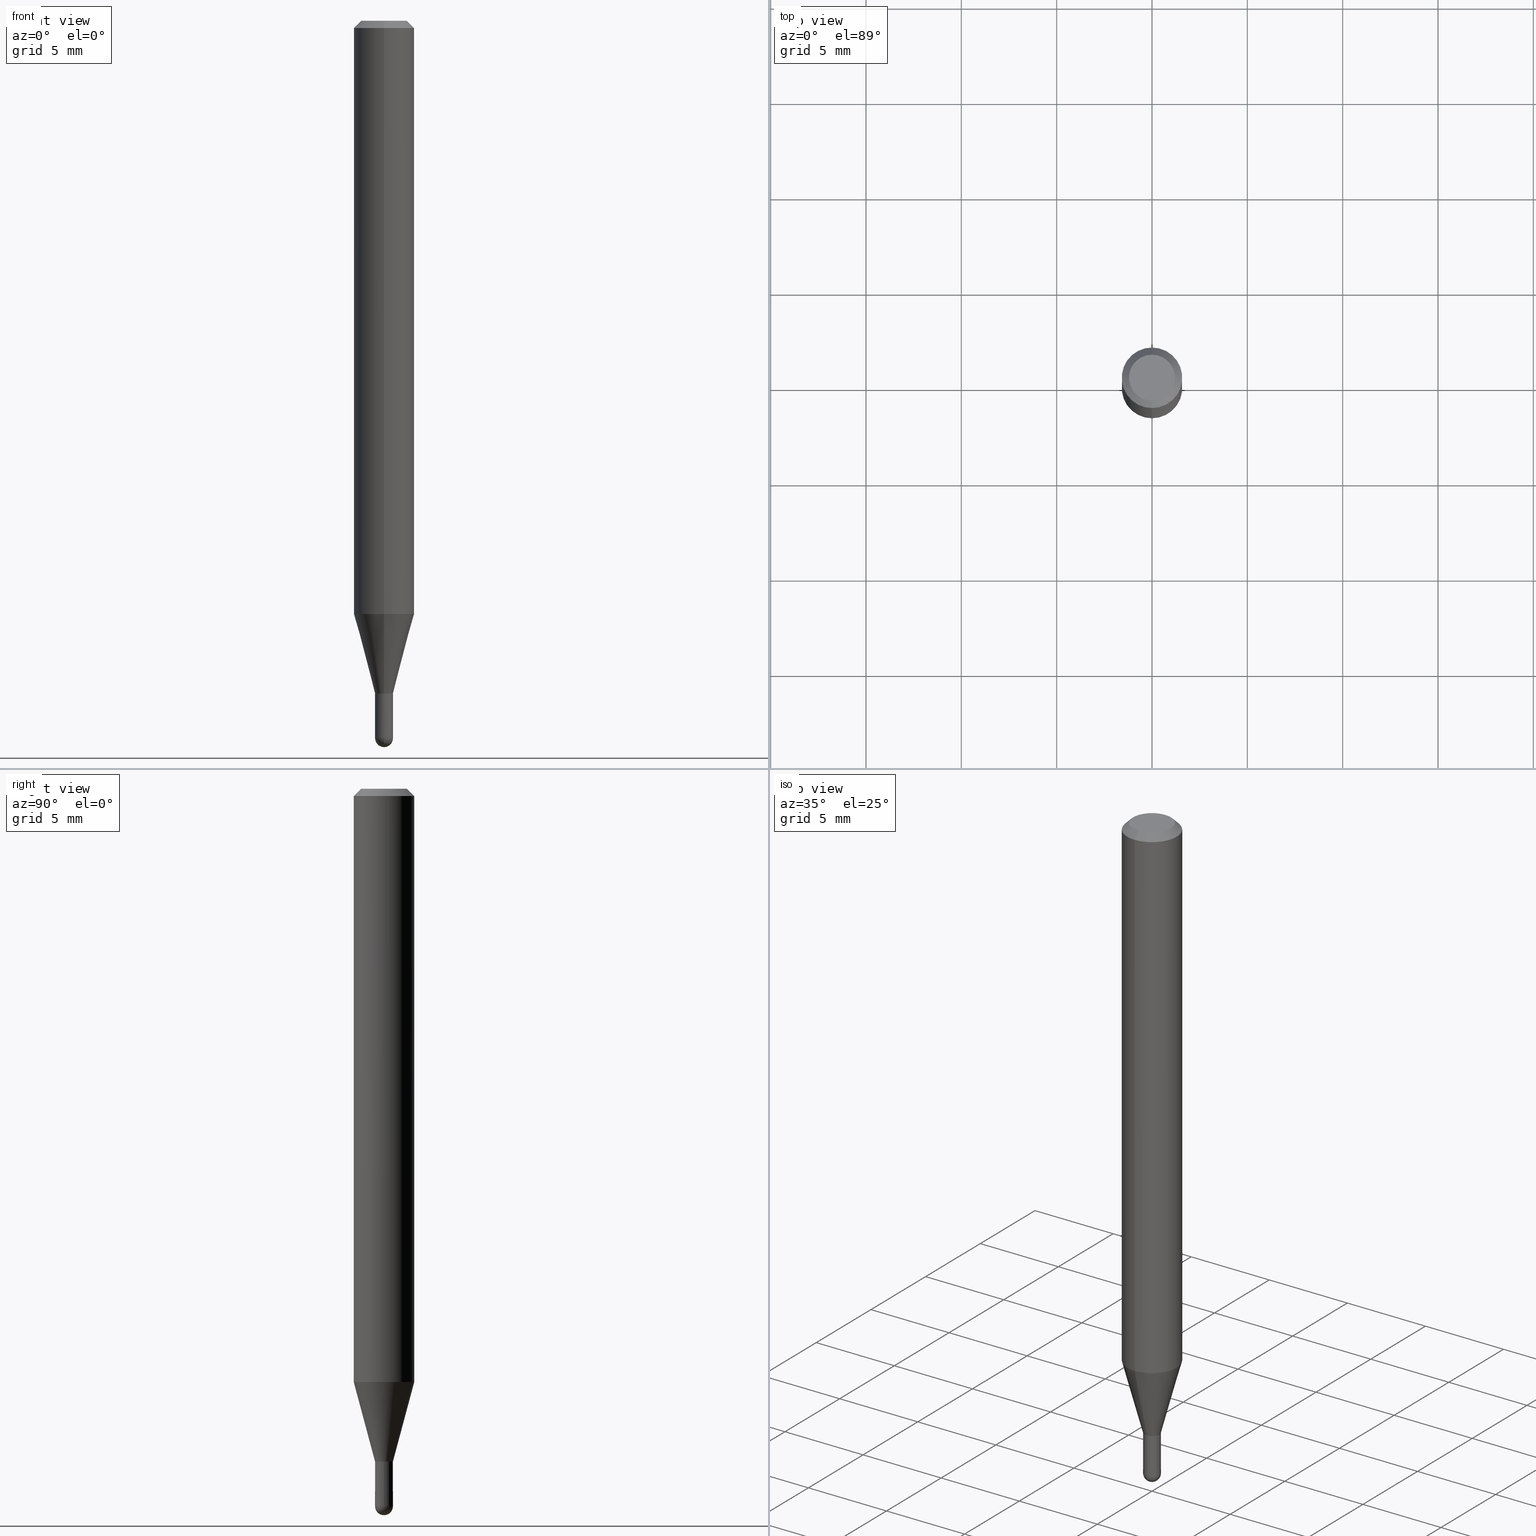
[diagram: canonical four-view strip — front | top / right | iso, engineering-drawing reading convention]
A machine part, canonical four-view strip (front | top / right | iso — engineering-drawing reading convention). The complete STEP part file that produces these views, byte-faithful:
ISO-10303-21;
HEADER;
FILE_DESCRIPTION (( 'STEP AP203' ),
    '1' );
FILE_NAME ('04415.STEP',
    '2024-03-08T19:18:58',
    ( '' ),
    ( '' ),
    'SwSTEP 2.0',
    'SolidWorks 2023',
    '' );
FILE_SCHEMA (( 'CONFIG_CONTROL_DESIGN' ));
ENDSEC;

DATA;
#1 = DIRECTION ( 'NONE',  ( 1.000000000000000000, -6.982962677686254089E-15, 0.000000000000000000 ) ) ;
#2 = CARTESIAN_POINT ( 'NONE',  ( 3.621379978728298144E-29, -5.174895200074542438E-15, -1.481500000000000039 ) ) ;
#3 = PERSON_AND_ORGANIZATION ( #355, #282 ) ;
#4 = CONICAL_SURFACE ( 'NONE', #297, 0.06250000000000000000, 0.7853981633974483900 ) ;
#5 = VECTOR ( 'NONE', #407, 39.37007874015748143 ) ;
#6 = DIRECTION ( 'NONE',  ( -6.982962677686265133E-15, -1.000000000000000000, 0.000000000000000000 ) ) ;
#7 = VERTEX_POINT ( 'NONE', #382 ) ;
#8 = CARTESIAN_POINT ( 'NONE',  ( 3.396756171791154536E-29, -4.849667579653129396E-15, -1.389000000000000234 ) ) ;
#9 = DIRECTION ( 'NONE',  ( -2.445468806185136597E-29, 3.491481338843145583E-15, 1.000000000000000000 ) ) ;
#10 = ADVANCED_FACE ( 'NONE', ( #491 ), #4, .T. ) ;
#11 = DIRECTION ( 'NONE',  ( 1.000000000000000000, -6.982962677686266711E-15, 4.876176775795935232E-29 ) ) ;
#12 = ORIENTED_EDGE ( 'NONE', *, *, #116, .F. ) ;
#13 = VECTOR ( 'NONE', #206, 39.37007874015748143 ) ;
#14 = CARTESIAN_POINT ( 'NONE',  ( 3.622962036363280209E-29, -5.172629603496120178E-15, -1.481500000000000039 ) ) ;
#15 = DESIGN_CONTEXT ( 'detailed design', #210, 'design' ) ;
#16 = ADVANCED_FACE ( 'NONE', ( #413 ), #471, .T. ) ;
#17 = DIRECTION ( 'NONE',  ( -6.982962677686265133E-15, -1.000000000000000000, 0.000000000000000000 ) ) ;
#18 = ORIENTED_EDGE ( 'NONE', *, *, #286, .F. ) ;
#19 = VERTEX_POINT ( 'NONE', #350 ) ;
#20 = CIRCLE ( 'NONE', #487, 0.01850000000000004766 ) ;
#21 = VERTEX_POINT ( 'NONE', #469 ) ;
#22 = EDGE_CURVE ( 'NONE', #299, #479, #287, .T. ) ;
#23 = DIRECTION ( 'NONE',  ( -4.851104656540964275E-15, -0.7071067811865500152, -0.7071067811865450192 ) ) ;
#24 = ORIENTED_EDGE ( 'NONE', *, *, #390, .F. ) ;
#25 = DIRECTION ( 'NONE',  ( -2.445452761393576848E-29, 3.491504315897871274E-15, 1.000000000000000000 ) ) ;
#26 = CIRCLE ( 'NONE', #493, 0.01849999999999999908 ) ;
#27 = VERTEX_POINT ( 'NONE', #228 ) ;
#28 = CARTESIAN_POINT ( 'NONE',  ( 3.621379978728298144E-29, -5.174895200074542438E-15, -1.481500000000000039 ) ) ;
#29 = APPROVAL_STATUS ( 'not_yet_approved' ) ;
#30 =( NAMED_UNIT ( * ) SI_UNIT ( $, .STERADIAN. ) SOLID_ANGLE_UNIT ( ) );
#31 = DIRECTION ( 'NONE',  ( -2.445452761393577128E-29, 3.491504315897871274E-15, 1.000000000000000000 ) ) ;
#32 = CARTESIAN_POINT ( 'NONE',  ( 3.396733885575678864E-29, -4.849699494782143429E-15, -1.389000000000000234 ) ) ;
#33 = APPLICATION_PROTOCOL_DEFINITION ( 'international standard', 'config_control_design', 1994, #143 ) ;
#34 = CARTESIAN_POINT ( 'NONE',  ( 1.278976924368519941E-16, 0.01799999999999515182, -1.388999999999999790 ) ) ;
#35 = DIRECTION ( 'NONE',  ( -6.982962677686265922E-15, -1.000000000000000000, 4.370956789862821150E-15 ) ) ;
#36 = CIRCLE ( 'NONE', #102, 0.01849999999999965214 ) ;
#37 = PERSON_AND_ORGANIZATION_ROLE ( 'classification_officer' ) ;
#38 = CYLINDRICAL_SURFACE ( 'NONE', #349, 0.01849999999999999908 ) ;
#39 = ADVANCED_FACE ( 'NONE', ( #462 ), #219, .T. ) ;
#40 = DIRECTION ( 'NONE',  ( -2.445452761393577128E-29, 3.491504315897871274E-15, 1.000000000000000000 ) ) ;
#41 = MECHANICAL_CONTEXT ( 'NONE', #143, 'mechanical' ) ;
#42 = CALENDAR_DATE ( 2024, 8, 3 ) ;
#43 = ORIENTED_EDGE ( 'NONE', *, *, #444, .F. ) ;
#44 = AXIS2_PLACEMENT_3D ( 'NONE', #32, #507, #6 ) ;
#45 = EDGE_CURVE ( 'NONE', #273, #443, #20, .T. ) ;
#46 = APPROVAL_PERSON_ORGANIZATION ( #110, #94, #283 ) ;
#47 = CARTESIAN_POINT ( 'NONE',  ( -1.291848095371934828E-16, -0.01849999999999965214, 6.459282984410940126E-17 ) ) ;
#48 = CARTESIAN_POINT ( 'NONE',  ( 3.840629472727447874E-16, 0.04749999999999999362, -2.313455976474456035E-16 ) ) ;
#49 = CARTESIAN_POINT ( 'NONE',  ( 1.314504061156500084E-16, 0.01849999999999480185, -1.389000000000000234 ) ) ;
#50 = CARTESIAN_POINT ( 'NONE',  ( 3.621379978728298144E-29, -5.174895200074542438E-15, -1.481500000000000039 ) ) ;
#51 = DIRECTION ( 'NONE',  ( 1.000000000000000000, -6.982962677686253300E-15, 0.000000000000000000 ) ) ;
#52 = DIRECTION ( 'NONE',  ( -2.445452761393576848E-29, 3.491504315897871274E-15, 1.000000000000000000 ) ) ;
#53 = CIRCLE ( 'NONE', #401, 0.01850000000000000255 ) ;
#54 = EDGE_CURVE ( 'NONE', #27, #299, #338, .T. ) ;
#55 = VERTEX_POINT ( 'NONE', #187 ) ;
#56 = DIRECTION ( 'NONE',  ( -2.445468806185136877E-29, 3.491481338843145188E-15, 1.000000000000000000 ) ) ;
#57 = CARTESIAN_POINT ( 'NONE',  ( -4.364351673553916201E-16, -0.06250000000000000000, 2.182190197436169546E-16 ) ) ;
#58 = EDGE_LOOP ( 'NONE', ( #278, #454, #302, #324, #301 ) ) ;
#59 = ADVANCED_FACE ( 'NONE', ( #346 ), #147, .T. ) ;
#60 = CIRCLE ( 'NONE', #268, 0.01849999999999965214 ) ;
#61 = LOCAL_TIME ( 14, 18, 58.00000000000000000, #230 ) ;
#62 = CONICAL_SURFACE ( 'NONE', #113, 0.01849999999999965214, 0.2617993877991581231 ) ;
#63 = EDGE_LOOP ( 'NONE', ( #474, #183, #456, #436 ) ) ;
#64 = CC_DESIGN_PERSON_AND_ORGANIZATION_ASSIGNMENT ( #76, #149, ( #176 ) ) ;
#65 = CARTESIAN_POINT ( 'NONE',  ( 0.000000000000000000, 0.000000000000000000, 0.000000000000000000 ) ) ;
#66 = CARTESIAN_POINT ( 'NONE',  ( -1.291848095371599808E-16, -0.01850000000000456141, -1.388500000000000290 ) ) ;
#67 = DIRECTION ( 'NONE',  ( -2.445468806185136597E-29, 3.491481338843145583E-15, 1.000000000000000000 ) ) ;
#68 = ORIENTED_EDGE ( 'NONE', *, *, #262, .F. ) ;
#69 = DIRECTION ( 'NONE',  ( 1.839019923739654352E-15, 0.2588190451025325634, 0.9659258262890650926 ) ) ;
#70 = VECTOR ( 'NONE', #52, 39.37007874015748143 ) ;
#71 = PERSON_AND_ORGANIZATION_ROLE ( 'design_owner' ) ;
#72 = DIRECTION ( 'NONE',  ( -6.982962677686265922E-15, -1.000000000000000000, 0.000000000000000000 ) ) ;
#73 = DIRECTION ( 'NONE',  ( -6.982962677686265133E-15, -1.000000000000000000, 0.000000000000000000 ) ) ;
#74 = DIRECTION ( 'NONE',  ( -2.445452761393577128E-29, 3.491504315897871274E-15, 1.000000000000000000 ) ) ;
#75 = CARTESIAN_POINT ( 'NONE',  ( 3.668179142090381947E-31, -5.237256473846829838E-17, -0.01500000000000006710 ) ) ;
#76 = PERSON_AND_ORGANIZATION ( #355, #282 ) ;
#77 = EDGE_CURVE ( 'NONE', #55, #101, #440, .T. ) ;
#78 = LINE ( 'NONE', #327, #88 ) ;
#79 = AXIS2_PLACEMENT_3D ( 'NONE', #405, #31, #331 ) ;
#80 = ORIENTED_EDGE ( 'NONE', *, *, #22, .F. ) ;
#81 = PERSON_AND_ORGANIZATION_ROLE ( 'design_supplier' ) ;
#82 = ORIENTED_EDGE ( 'NONE', *, *, #286, .T. ) ;
#83 = LINE ( 'NONE', #47, #70 ) ;
#84 = SPHERICAL_SURFACE ( 'NONE', #481, 0.01850000000000004766 ) ;
#85 = EDGE_CURVE ( 'NONE', #19, #294, #226, .T. ) ;
#86 = ORIENTED_EDGE ( 'NONE', *, *, #444, .T. ) ;
#87 = CC_DESIGN_PERSON_AND_ORGANIZATION_ASSIGNMENT ( #347, #81, ( #340 ) ) ;
#88 = VECTOR ( 'NONE', #510, 39.37007874015748143 ) ;
#89 = CARTESIAN_POINT ( 'NONE',  ( -4.364351673553617913E-16, -0.06250000000000428824, -1.224789764466973629 ) ) ;
#90 = ORIENTED_EDGE ( 'NONE', *, *, #99, .T. ) ;
#91 = FACE_OUTER_BOUND ( 'NONE', #217, .T. ) ;
#92 = DIRECTION ( 'NONE',  ( -2.445452761393577128E-29, 3.491504315897871274E-15, 1.000000000000000000 ) ) ;
#93 = DIRECTION ( 'NONE',  ( -2.445452761393577128E-29, 3.491504315897871274E-15, 1.000000000000000000 ) ) ;
#94 = APPROVAL ( #267, 'UNSPECIFIED' ) ;
#95 = VERTEX_POINT ( 'NONE', #245 ) ;
#96 = CIRCLE ( 'NONE', #384, 0.01850000000000000255 ) ;
#97 = ORIENTED_EDGE ( 'NONE', *, *, #375, .F. ) ;
#98 = ORIENTED_EDGE ( 'NONE', *, *, #137, .T. ) ;
#99 = EDGE_CURVE ( 'NONE', #299, #19, #175, .T. ) ;
#100 = DIRECTION ( 'NONE',  ( 6.982962677686265922E-15, 1.000000000000000000, -3.491504315897871274E-15 ) ) ;
#101 = VERTEX_POINT ( 'NONE', #114 ) ;
#102 = AXIS2_PLACEMENT_3D ( 'NONE', #357, #247, #196 ) ;
#103 = CONICAL_SURFACE ( 'NONE', #289, 0.01800000000000000211, 0.7853981633974739252 ) ;
#104 = DIRECTION ( 'NONE',  ( 6.982962677686265922E-15, 1.000000000000000000, -3.483106191921935554E-15 ) ) ;
#105 = CARTESIAN_POINT ( 'NONE',  ( 3.668179142090381947E-31, -5.237256473846829838E-17, -0.01500000000000006710 ) ) ;
#106 = FACE_OUTER_BOUND ( 'NONE', #483, .T. ) ;
#107 = EDGE_LOOP ( 'NONE', ( #417, #445 ) ) ;
#108 = ADVANCED_FACE ( 'NONE', ( #106 ), #422, .F. ) ;
#109 = ORIENTED_EDGE ( 'NONE', *, *, #354, .F. ) ;
#110 = PERSON_AND_ORGANIZATION ( #355, #282 ) ;
#111 = CARTESIAN_POINT ( 'NONE',  ( 1.291848095372298936E-16, 0.01849999999999515227, -1.389000000000000234 ) ) ;
#112 = AXIS2_PLACEMENT_3D ( 'NONE', #111, #186, #271 ) ;
#113 = AXIS2_PLACEMENT_3D ( 'NONE', #182, #146, #73 ) ;
#114 = CARTESIAN_POINT ( 'NONE',  ( 4.440892098500927901E-16, 0.06249999999999995837, -0.01500000000000028394 ) ) ;
#115 = PERSON_AND_ORGANIZATION ( #355, #282 ) ;
#116 = EDGE_CURVE ( 'NONE', #479, #476, #433, .T. ) ;
#117 = CARTESIAN_POINT ( 'NONE',  ( 3.396733885575678304E-29, -4.849699494782142640E-15, -1.388999999999999790 ) ) ;
#118 = DIRECTION ( 'NONE',  ( -2.445452761393577128E-29, 3.491504315897871274E-15, 1.000000000000000000 ) ) ;
#119 = DIRECTION ( 'NONE',  ( -2.445452761393577128E-29, 3.491504315897871274E-15, 1.000000000000000000 ) ) ;
#120 = COORDINATED_UNIVERSAL_TIME_OFFSET ( 5, 0, .BEHIND. ) ;
#121 = PRODUCT_RELATED_PRODUCT_CATEGORY ( 'detail', '', ( #232 ) ) ;
#122 = APPROVAL_PERSON_ORGANIZATION ( #3, #429, #509 ) ;
#123 = DIRECTION ( 'NONE',  ( -2.445452761393577128E-29, 3.491504315897871274E-15, 1.000000000000000000 ) ) ;
#124 = EDGE_LOOP ( 'NONE', ( #80, #170, #370, #12 ) ) ;
#125 = ADVANCED_FACE ( 'NONE', ( #470 ), #352, .F. ) ;
#126 = ORIENTED_EDGE ( 'NONE', *, *, #399, .T. ) ;
#127 = DIRECTION ( 'NONE',  ( -6.982962677686265922E-15, -1.000000000000000000, 3.491504315897871274E-15 ) ) ;
#128 = AXIS2_PLACEMENT_3D ( 'NONE', #506, #118, #151 ) ;
#129 = EDGE_LOOP ( 'NONE', ( #18, #362, #68, #253 ) ) ;
#130 = AXIS2_PLACEMENT_3D ( 'NONE', #117, #162, #485 ) ;
#131 = ORIENTED_EDGE ( 'NONE', *, *, #85, .T. ) ;
#132 = ORIENTED_EDGE ( 'NONE', *, *, #492, .T. ) ;
#133 = FACE_OUTER_BOUND ( 'NONE', #284, .T. ) ;
#134 = LINE ( 'NONE', #446, #5 ) ;
#135 = APPROVAL ( #29, 'UNSPECIFIED' ) ;
#136 = AXIS2_PLACEMENT_3D ( 'NONE', #425, #150, #330 ) ;
#137 = EDGE_CURVE ( 'NONE', #495, #223, #242, .T. ) ;
#138 = CARTESIAN_POINT ( 'NONE',  ( -0.01849999999999999908, 1.314504061156185279E-16, -9.100029916971574589E-31 ) ) ;
#139 = LINE ( 'NONE', #57, #243 ) ;
#140 = ORIENTED_EDGE ( 'NONE', *, *, #148, .T. ) ;
#141 = CONICAL_SURFACE ( 'NONE', #79, 0.01800000000000000211, 0.7853981633974739252 ) ;
#142 = VERTEX_POINT ( 'NONE', #274 ) ;
#143 = APPLICATION_CONTEXT ( 'configuration controlled 3d designs of mechanical parts and assemblies' ) ;
#144 = EDGE_CURVE ( 'NONE', #142, #21, #26, .T. ) ;
#145 = EDGE_LOOP ( 'NONE', ( #181, #307, #379, #406 ) ) ;
#146 = DIRECTION ( 'NONE',  ( -2.445452761393577128E-29, 3.491504315897871274E-15, 1.000000000000000000 ) ) ;
#147 = CONICAL_SURFACE ( 'NONE', #450, 0.06250000000000000000, 0.7853981633974483900 ) ;
#148 = EDGE_CURVE ( 'NONE', #443, #431, #96, .T. ) ;
#149 = PERSON_AND_ORGANIZATION_ROLE ( 'creator' ) ;
#150 = DIRECTION ( 'NONE',  ( -2.445468806185136597E-29, 3.491481338843145583E-15, 1.000000000000000000 ) ) ;
#151 = DIRECTION ( 'NONE',  ( -6.982962677686265133E-15, -1.000000000000000000, 3.491504315897871274E-15 ) ) ;
#152 = DIRECTION ( 'NONE',  ( 7.105427357601000281E-15, 1.000000000000000000, 0.000000000000000000 ) ) ;
#153 = CARTESIAN_POINT ( 'NONE',  ( 3.396733885575678304E-29, -4.849699494782142640E-15, -1.388999999999999790 ) ) ;
#154 = COORDINATED_UNIVERSAL_TIME_OFFSET ( 5, 0, .BEHIND. ) ;
#155 = CARTESIAN_POINT ( 'NONE',  ( 3.622962036363280209E-29, -5.172629603496120178E-15, -1.481500000000000039 ) ) ;
#156 = PLANE ( 'NONE',  #348 ) ;
#157 = CALENDAR_DATE ( 2024, 8, 3 ) ;
#158 = EDGE_CURVE ( 'NONE', #479, #101, #358, .T. ) ;
#159 = CARTESIAN_POINT ( 'NONE',  ( 0.01849999999999999908, -1.291848095371959233E-16, 9.020927035222480096E-31 ) ) ;
#160 = ORIENTED_EDGE ( 'NONE', *, *, #148, .F. ) ;
#161 = CYLINDRICAL_SURFACE ( 'NONE', #334, 0.06250000000000000000 ) ;
#162 = DIRECTION ( 'NONE',  ( -2.445452761393577128E-29, 3.491504315897871274E-15, 1.000000000000000000 ) ) ;
#163 = FACE_OUTER_BOUND ( 'NONE', #63, .T. ) ;
#164 = DIRECTION ( 'NONE',  ( -2.445468806185136597E-29, 3.491481338843145583E-15, 1.000000000000000000 ) ) ;
#165 = CC_DESIGN_PERSON_AND_ORGANIZATION_ASSIGNMENT ( #356, #71, ( #232 ) ) ;
#166 = VECTOR ( 'NONE', #23, 39.37007874015748143 ) ;
#167 = DIRECTION ( 'NONE',  ( -2.445468806185136597E-29, 3.491481338843145583E-15, 1.000000000000000000 ) ) ;
#168 = MANIFOLD_SOLID_BREP ( 'Body-Move/Copy2[1]', #325 ) ;
#169 = CYLINDRICAL_SURFACE ( 'NONE', #393, 0.01849999999999965214 ) ;
#170 = ORIENTED_EDGE ( 'NONE', *, *, #329, .T. ) ;
#171 =( LENGTH_UNIT ( ) NAMED_UNIT ( * ) SI_UNIT ( $, .METRE. ) );
#172 = MANIFOLD_SOLID_BREP ( 'Body-Move/Copy2[2]', #466 ) ;
#173 = ADVANCED_FACE ( 'NONE', ( #312 ), #500, .T. ) ;
#174 = EDGE_LOOP ( 'NONE', ( #207, #496, #488, #43 ) ) ;
#175 = LINE ( 'NONE', #309, #252 ) ;
#176 = PRODUCT_DEFINITION ( 'UNKNOWN', '', #340, #15 ) ;
#177 = AXIS2_PLACEMENT_3D ( 'NONE', #75, #447, #300 ) ;
#178 = LOCAL_TIME ( 14, 18, 58.00000000000000000, #154 ) ;
#179 = CARTESIAN_POINT ( 'NONE',  ( 1.601750592435163401E-45, -2.286905392231893458E-31, -6.549914264229672534E-17 ) ) ;
#180 = LINE ( 'NONE', #441, #465 ) ;
#181 = ORIENTED_EDGE ( 'NONE', *, *, #345, .F. ) ;
#182 = CARTESIAN_POINT ( 'NONE',  ( 3.396733885575678864E-29, -4.849699494782143429E-15, -1.389000000000000234 ) ) ;
#183 = ORIENTED_EDGE ( 'NONE', *, *, #54, .F. ) ;
#184 = PRODUCT_DEFINITION_SHAPE ( 'NONE', 'NONE',  #176 ) ;
#185 = EDGE_CURVE ( 'NONE', #504, #294, #134, .T. ) ;
#186 = DIRECTION ( 'NONE',  ( 2.438088387897960049E-29, -3.491481338843145188E-15, -1.000000000000000000 ) ) ;
#187 = CARTESIAN_POINT ( 'NONE',  ( -4.364351673553912750E-16, -0.06250000000000005551, -0.01499999999999984852 ) ) ;
#188 = APPLICATION_PROTOCOL_DEFINITION ( 'international standard', 'config_control_design', 1994, #210 ) ;
#189 = DIRECTION ( 'NONE',  ( 5.024295867788190974E-15, 0.7071067811865681119, 0.7071067811865270336 ) ) ;
#190 = DIRECTION ( 'NONE',  ( -2.445452761393577128E-29, 3.491504315897871274E-15, 1.000000000000000000 ) ) ;
#191 = CARTESIAN_POINT ( 'NONE',  ( 3.622962036363280209E-29, -5.172629603496120178E-15, -1.481500000000000039 ) ) ;
#192 = CIRCLE ( 'NONE', #288, 0.06250000000000000000 ) ;
#193 = CC_DESIGN_PERSON_AND_ORGANIZATION_ASSIGNMENT ( #361, #387, ( #340 ) ) ;
#194 = LOCAL_TIME ( 14, 18, 58.00000000000000000, #392 ) ;
#195 = DIRECTION ( 'NONE',  ( -1.000000000000000000, 6.982962677686265922E-15, -4.883557194083112340E-29 ) ) ;
#196 = DIRECTION ( 'NONE',  ( -6.982962677686265133E-15, -1.000000000000000000, 0.000000000000000000 ) ) ;
#197 = DATE_AND_TIME ( #419, #408 ) ;
#198 = FACE_OUTER_BOUND ( 'NONE', #124, .T. ) ;
#199 = CARTESIAN_POINT ( 'NONE',  ( 3.622962036363280209E-29, -5.172629603496120178E-15, -1.481500000000000039 ) ) ;
#200 = AXIS2_PLACEMENT_3D ( 'NONE', #28, #353, #152 ) ;
#201 = AXIS2_PLACEMENT_3D ( 'NONE', #499, #315, #423 ) ;
#202 = ORIENTED_EDGE ( 'NONE', *, *, #144, .T. ) ;
#203 = CARTESIAN_POINT ( 'NONE',  ( 3.665830122825232919E-29, -5.240620403132352355E-15, -1.500000000000000222 ) ) ;
#204 = CARTESIAN_POINT ( 'NONE',  ( 1.314504061156549141E-16, 0.01849999999999485042, -1.481500000000000039 ) ) ;
#205 = EDGE_CURVE ( 'NONE', #7, #504, #411, .T. ) ;
#206 = DIRECTION ( 'NONE',  ( -2.445468806185136877E-29, 3.491481338843145188E-15, 1.000000000000000000 ) ) ;
#207 = ORIENTED_EDGE ( 'NONE', *, *, #279, .T. ) ;
#208 = DIRECTION ( 'NONE',  ( -2.445452761393577128E-29, 3.491504315897871274E-15, 1.000000000000000000 ) ) ;
#209 = DIRECTION ( 'NONE',  ( 1.000000000000000000, -6.982962677686265922E-15, 4.883557194083112901E-29 ) ) ;
#210 = APPLICATION_CONTEXT ( 'configuration controlled 3d designs of mechanical parts and assemblies' ) ;
#211 = CC_DESIGN_DATE_AND_TIME_ASSIGNMENT ( #388, #473, ( #213 ) ) ;
#212 = LINE ( 'NONE', #34, #261 ) ;
#213 = SECURITY_CLASSIFICATION ( '', '', #359 ) ;
#214 = CARTESIAN_POINT ( 'NONE',  ( 0.000000000000000000, 0.000000000000000000, 0.000000000000000000 ) ) ;
#215 = ORIENTED_EDGE ( 'NONE', *, *, #512, .F. ) ;
#216 = DIRECTION ( 'NONE',  ( -2.445452761393576848E-29, 3.491504315897871274E-15, 1.000000000000000000 ) ) ;
#217 = EDGE_LOOP ( 'NONE', ( #448, #438, #109, #409 ) ) ;
#218 = AXIS2_PLACEMENT_3D ( 'NONE', #50, #209, #420 ) ;
#219 = CONICAL_SURFACE ( 'NONE', #363, 0.01849999999999965214, 0.2617993877991581231 ) ;
#220 = CC_DESIGN_APPROVAL ( #135, ( #213 ) ) ;
#221 = ORIENTED_EDGE ( 'NONE', *, *, #404, .F. ) ;
#222 = EDGE_CURVE ( 'NONE', #459, #95, #235, .T. ) ;
#223 = VERTEX_POINT ( 'NONE', #295 ) ;
#224 = CC_DESIGN_PERSON_AND_ORGANIZATION_ASSIGNMENT ( #310, #37, ( #213 ) ) ;
#225 = EDGE_LOOP ( 'NONE', ( #458, #82, #215, #160 ) ) ;
#226 = CIRCLE ( 'NONE', #464, 0.01849999999999965214 ) ;
#227 = APPROVAL_PERSON_ORGANIZATION ( #115, #135, #322 ) ;
#228 = CARTESIAN_POINT ( 'NONE',  ( -1.291848095371595124E-16, -0.01850000000000450243, -1.389000000000000234 ) ) ;
#229 = ORIENTED_EDGE ( 'NONE', *, *, #375, .T. ) ;
#230 = COORDINATED_UNIVERSAL_TIME_OFFSET ( 5, 0, .BEHIND. ) ;
#231 = DATE_TIME_ROLE ( 'creation_date' ) ;
#232 = PRODUCT ( '04415', '04415', '', ( #41 ) ) ;
#233 = FACE_OUTER_BOUND ( 'NONE', #107, .T. ) ;
#234 = APPROVAL_STATUS ( 'not_yet_approved' ) ;
#235 = CIRCLE ( 'NONE', #280, 0.01850000000000000255 ) ;
#236 = CARTESIAN_POINT ( 'NONE',  ( 3.668179142090381947E-31, -5.237256473846829838E-17, -0.01500000000000006710 ) ) ;
#237 = DATE_AND_TIME ( #42, #61 ) ;
#238 = EDGE_CURVE ( 'NONE', #27, #294, #83, .T. ) ;
#239 = CALENDAR_DATE ( 2024, 8, 3 ) ;
#240 =( CONVERSION_BASED_UNIT ( 'INCH', #437 ) LENGTH_UNIT ( ) NAMED_UNIT ( #497 ) );
#241 = CARTESIAN_POINT ( 'NONE',  ( 1.601750592435163401E-45, -2.286905392231893458E-31, -6.549914264229672534E-17 ) ) ;
#242 = CIRCLE ( 'NONE', #418, 0.04749999999999999362 ) ;
#243 = VECTOR ( 'NONE', #216, 39.37007874015748143 ) ;
#244 = CARTESIAN_POINT ( 'NONE',  ( 0.000000000000000000, 0.000000000000000000, 0.000000000000000000 ) ) ;
#245 = CARTESIAN_POINT ( 'NONE',  ( -0.01850000000000000255, -4.879698185459006925E-15, -1.481500000000000039 ) ) ;
#246 = DIRECTION ( 'NONE',  ( 4.937700262164548042E-15, 0.7071067811865451302, -0.7071067811865499042 ) ) ;
#247 = DIRECTION ( 'NONE',  ( -2.445452761393577128E-29, 3.491504315897871274E-15, 1.000000000000000000 ) ) ;
#248 = ORIENTED_EDGE ( 'NONE', *, *, #492, .F. ) ;
#249 = CARTESIAN_POINT ( 'NONE',  ( 0.000000000000000000, 0.000000000000000000, 0.000000000000000000 ) ) ;
#250 = CARTESIAN_POINT ( 'NONE',  ( 3.316907271900976096E-16, 0.04749999999999999362, -1.985960263262972346E-16 ) ) ;
#251 = CARTESIAN_POINT ( 'NONE',  ( 3.396733885575678304E-29, -4.849699494782142640E-15, -1.388999999999999790 ) ) ;
#252 = VECTOR ( 'NONE', #25, 39.37007874015748143 ) ;
#253 = ORIENTED_EDGE ( 'NONE', *, *, #222, .F. ) ;
#254 = ORIENTED_EDGE ( 'NONE', *, *, #77, .T. ) ;
#255 = LINE ( 'NONE', #138, #305 ) ;
#256 = ADVANCED_FACE ( 'NONE', ( #367 ), #480, .T. ) ;
#257 = CARTESIAN_POINT ( 'NONE',  ( -1.291848095371598576E-16, -0.01850000000000519979, -1.481500000000000039 ) ) ;
#258 = ORIENTED_EDGE ( 'NONE', *, *, #383, .T. ) ;
#259 = DIRECTION ( 'NONE',  ( -6.982962677686265133E-15, -1.000000000000000000, 3.491504315897871274E-15 ) ) ;
#260 = ORIENTED_EDGE ( 'NONE', *, *, #137, .F. ) ;
#261 = VECTOR ( 'NONE', #189, 39.37007874015748143 ) ;
#262 = EDGE_CURVE ( 'NONE', #95, #443, #53, .T. ) ;
#263 = ORIENTED_EDGE ( 'NONE', *, *, #399, .F. ) ;
#264 = DIRECTION ( 'NONE',  ( -2.445452761393577128E-29, 3.491504315897871274E-15, 1.000000000000000000 ) ) ;
#265 = ORIENTED_EDGE ( 'NONE', *, *, #404, .T. ) ;
#266 = CARTESIAN_POINT ( 'NONE',  ( 3.668179142090381947E-31, -5.237256473846829838E-17, -0.01500000000000006710 ) ) ;
#267 = APPROVAL_STATUS ( 'not_yet_approved' ) ;
#268 = AXIS2_PLACEMENT_3D ( 'NONE', #472, #394, #275 ) ;
#269 = CARTESIAN_POINT ( 'NONE',  ( 3.396733885575678864E-29, -4.849699494782143429E-15, -1.389000000000000234 ) ) ;
#270 = COORDINATED_UNIVERSAL_TIME_OFFSET ( 5, 0, .BEHIND. ) ;
#271 = DIRECTION ( 'NONE',  ( -1.000000000000000000, 6.982962677686265922E-15, -4.876176775795935793E-29 ) ) ;
#272 = DATE_AND_TIME ( #395, #194 ) ;
#273 = VERTEX_POINT ( 'NONE', #203 ) ;
#274 = CARTESIAN_POINT ( 'NONE',  ( -0.01849999999999999908, -4.879698185459006925E-15, -1.389000000000000234 ) ) ;
#275 = DIRECTION ( 'NONE',  ( -6.982962677686265133E-15, -1.000000000000000000, 0.000000000000000000 ) ) ;
#276 = SHAPE_DEFINITION_REPRESENTATION ( #184, #468 ) ;
#277 = DIRECTION ( 'NONE',  ( -6.982962677686265922E-15, -1.000000000000000000, 3.483106191921935554E-15 ) ) ;
#278 = ORIENTED_EDGE ( 'NONE', *, *, #222, .T. ) ;
#279 = EDGE_CURVE ( 'NONE', #476, #479, #192, .T. ) ;
#280 = AXIS2_PLACEMENT_3D ( 'NONE', #14, #9, #400 ) ;
#281 = DIRECTION ( 'NONE',  ( -6.982962677686265133E-15, -1.000000000000000000, 0.000000000000000000 ) ) ;
#282 = ORGANIZATION ( 'UNSPECIFIED', 'UNSPECIFIED', '' ) ;
#283 = APPROVAL_ROLE ( '' ) ;
#284 = EDGE_LOOP ( 'NONE', ( #402, #344, #86, #221 ) ) ;
#285 = DIRECTION ( 'NONE',  ( -6.982962677686265133E-15, -1.000000000000000000, 0.000000000000000000 ) ) ;
#286 = EDGE_CURVE ( 'NONE', #273, #459, #311, .T. ) ;
#287 = LINE ( 'NONE', #49, #326 ) ;
#288 = AXIS2_PLACEMENT_3D ( 'NONE', #369, #291, #463 ) ;
#289 = AXIS2_PLACEMENT_3D ( 'NONE', #397, #323, #336 ) ;
#290 = ORIENTED_EDGE ( 'NONE', *, *, #22, .T. ) ;
#291 = DIRECTION ( 'NONE',  ( -2.445452761393577128E-29, 3.491504315897871274E-15, 1.000000000000000000 ) ) ;
#292 = CARTESIAN_POINT ( 'NONE',  ( 4.440892098500923957E-16, 0.06249999999999571176, -1.224789764466974074 ) ) ;
#293 = DIRECTION ( 'NONE',  ( 1.000000000000000000, -6.982962677686265922E-15, 4.883557194083112901E-29 ) ) ;
#294 = VERTEX_POINT ( 'NONE', #66 ) ;
#295 = CARTESIAN_POINT ( 'NONE',  ( -3.773273898774340269E-16, -0.04749999999999999362, 1.003473123628521405E-16 ) ) ;
#296 = CARTESIAN_POINT ( 'NONE',  ( -4.287811248607203282E-16, -0.06250000000000005551, -0.01499999999999984852 ) ) ;
#297 = AXIS2_PLACEMENT_3D ( 'NONE', #266, #304, #104 ) ;
#298 = AXIS2_PLACEMENT_3D ( 'NONE', #251, #92, #285 ) ;
#299 = VERTEX_POINT ( 'NONE', #321 ) ;
#300 = DIRECTION ( 'NONE',  ( -6.982962677686265922E-15, -1.000000000000000000, 3.483106191921935554E-15 ) ) ;
#301 = ORIENTED_EDGE ( 'NONE', *, *, #512, .T. ) ;
#302 = ORIENTED_EDGE ( 'NONE', *, *, #457, .F. ) ;
#303 = EDGE_CURVE ( 'NONE', #27, #476, #78, .T. ) ;
#304 = DIRECTION ( 'NONE',  ( 2.445452761393577128E-29, -3.491504315897871274E-15, -1.000000000000000000 ) ) ;
#305 = VECTOR ( 'NONE', #56, 39.37007874015748143 ) ;
#306 = ORIENTED_EDGE ( 'NONE', *, *, #54, .T. ) ;
#307 = ORIENTED_EDGE ( 'NONE', *, *, #205, .T. ) ;
#308 = CARTESIAN_POINT ( 'NONE',  ( 4.440892098500625669E-16, 0.06250000000000000000, -2.182190197436169546E-16 ) ) ;
#309 = CARTESIAN_POINT ( 'NONE',  ( 1.314504061156160380E-16, 0.01849999999999965214, -6.459282984410940126E-17 ) ) ;
#310 = PERSON_AND_ORGANIZATION ( #355, #282 ) ;
#311 = CIRCLE ( 'NONE', #200, 0.01850000000000004766 ) ;
#312 = FACE_OUTER_BOUND ( 'NONE', #335, .T. ) ;
#313 = CIRCLE ( 'NONE', #365, 0.01850000000000000255 ) ;
#314 = DIRECTION ( 'NONE',  ( 6.982962677686265922E-15, 1.000000000000000000, -3.483106191921935554E-15 ) ) ;
#315 = DIRECTION ( 'NONE',  ( 0.000000000000000000, 0.000000000000000000, 1.000000000000000000 ) ) ;
#316 = DIRECTION ( 'NONE',  ( -2.445468806185136597E-29, 3.491481338843145583E-15, 1.000000000000000000 ) ) ;
#317 = DIRECTION ( 'NONE',  ( -6.982962677686266711E-15, -1.000000000000000000, 3.491504315897871274E-15 ) ) ;
#318 = DIRECTION ( 'NONE',  ( -6.982962677686265922E-15, -1.000000000000000000, 3.491504315897871274E-15 ) ) ;
#319 = APPROVAL_DATE_TIME ( #428, #135 ) ;
#320 = ADVANCED_FACE ( 'NONE', ( #233 ), #508, .F. ) ;
#321 = CARTESIAN_POINT ( 'NONE',  ( 2.877698079828713992E-16, 0.01849999999999480185, -1.389000000000000234 ) ) ;
#322 = APPROVAL_ROLE ( '' ) ;
#323 = DIRECTION ( 'NONE',  ( -2.445452761393577128E-29, 3.491504315897871274E-15, 1.000000000000000000 ) ) ;
#324 = ORIENTED_EDGE ( 'NONE', *, *, #383, .F. ) ;
#325 = CLOSED_SHELL ( 'NONE', ( #478, #256, #108, #341, #173 ) ) ;
#326 = VECTOR ( 'NONE', #69, 39.37007874015748143 ) ;
#327 = CARTESIAN_POINT ( 'NONE',  ( -1.291848095371595124E-16, -0.01850000000000450243, -1.389000000000000234 ) ) ;
#328 = ORIENTED_EDGE ( 'NONE', *, *, #457, .T. ) ;
#329 = EDGE_CURVE ( 'NONE', #299, #27, #60, .T. ) ;
#330 = DIRECTION ( 'NONE',  ( 1.000000000000000000, -6.982962677686266711E-15, 4.876176775795935232E-29 ) ) ;
#331 = DIRECTION ( 'NONE',  ( -6.982962677686265133E-15, -1.000000000000000000, 0.000000000000000000 ) ) ;
#332 = VECTOR ( 'NONE', #461, 39.37007874015748143 ) ;
#333 = DIRECTION ( 'NONE',  ( 1.000000000000000000, -6.982962677686253300E-15, 0.000000000000000000 ) ) ;
#334 = AXIS2_PLACEMENT_3D ( 'NONE', #214, #208, #484 ) ;
#335 = EDGE_LOOP ( 'NONE', ( #24, #368, #140, #258, #396 ) ) ;
#336 = DIRECTION ( 'NONE',  ( -6.982962677686265133E-15, -1.000000000000000000, 0.000000000000000000 ) ) ;
#337 = ADVANCED_FACE ( 'NONE', ( #430 ), #156, .F. ) ;
#338 = CIRCLE ( 'NONE', #44, 0.01849999999999965214 ) ;
#339 = EDGE_LOOP ( 'NONE', ( #97, #260, #126, #265 ) ) ;
#340 = PRODUCT_DEFINITION_FORMATION_WITH_SPECIFIED_SOURCE ( 'ANY', '', #232, .NOT_KNOWN. ) ;
#341 = ADVANCED_FACE ( 'NONE', ( #366 ), #84, .T. ) ;
#342 = ORIENTED_EDGE ( 'NONE', *, *, #303, .F. ) ;
#343 = AXIS2_PLACEMENT_3D ( 'NONE', #153, #40, #318 ) ;
#344 = ORIENTED_EDGE ( 'NONE', *, *, #116, .T. ) ;
#345 = EDGE_CURVE ( 'NONE', #7, #19, #212, .T. ) ;
#346 = FACE_OUTER_BOUND ( 'NONE', #376, .T. ) ;
#347 = PERSON_AND_ORGANIZATION ( #355, #282 ) ;
#348 = AXIS2_PLACEMENT_3D ( 'NONE', #250, #403, #100 ) ;
#349 = AXIS2_PLACEMENT_3D ( 'NONE', #249, #167, #11 ) ;
#350 = CARTESIAN_POINT ( 'NONE',  ( 1.314504061156495646E-16, 0.01849999999999473940, -1.388500000000000290 ) ) ;
#351 = DIRECTION ( 'NONE',  ( 1.000000000000000000, -6.982962677686253300E-15, 0.000000000000000000 ) ) ;
#352 = CYLINDRICAL_SURFACE ( 'NONE', #128, 0.01849999999999965214 ) ;
#353 = DIRECTION ( 'NONE',  ( 1.000000000000000000, -7.105427357601001070E-15, 4.926315508542082329E-29 ) ) ;
#354 = EDGE_CURVE ( 'NONE', #294, #19, #36, .T. ) ;
#355 = PERSON ( 'UNSPECIFIED', 'UNSPECIFIED', 'UNSPECIFIED', ('UNSPECIFIED'), ('UNSPECIFIED'), ('UNSPECIFIED') ) ;
#356 = PERSON_AND_ORGANIZATION ( #355, #282 ) ;
#357 = CARTESIAN_POINT ( 'NONE',  ( 3.395511159194982777E-29, -4.847953742624194253E-15, -1.388500000000000290 ) ) ;
#358 = LINE ( 'NONE', #308, #332 ) ;
#359 = SECURITY_CLASSIFICATION_LEVEL ( 'unclassified' ) ;
#360 = FACE_OUTER_BOUND ( 'NONE', #58, .T. ) ;
#361 = PERSON_AND_ORGANIZATION ( #355, #282 ) ;
#362 = ORIENTED_EDGE ( 'NONE', *, *, #45, .T. ) ;
#363 = AXIS2_PLACEMENT_3D ( 'NONE', #269, #123, #281 ) ;
#364 = DIRECTION ( 'NONE',  ( -6.982962677686266711E-15, -1.000000000000000000, 3.491504315897871274E-15 ) ) ;
#365 = AXIS2_PLACEMENT_3D ( 'NONE', #155, #164, #333 ) ;
#366 = FACE_OUTER_BOUND ( 'NONE', #129, .T. ) ;
#367 = FACE_OUTER_BOUND ( 'NONE', #225, .T. ) ;
#368 = ORIENTED_EDGE ( 'NONE', *, *, #262, .T. ) ;
#369 = CARTESIAN_POINT ( 'NONE',  ( 2.995165511642350382E-29, -4.276358748703976634E-15, -1.224789764466973851 ) ) ;
#370 = ORIENTED_EDGE ( 'NONE', *, *, #303, .T. ) ;
#371 = CIRCLE ( 'NONE', #505, 0.06250000000000000000 ) ;
#372 = ADVANCED_FACE ( 'NONE', ( #163 ), #169, .F. ) ;
#373 = LINE ( 'NONE', #159, #13 ) ;
#374 = CARTESIAN_POINT ( 'NONE',  ( 3.395511159194982777E-29, -4.847953742624194253E-15, -1.388500000000000290 ) ) ;
#375 = EDGE_CURVE ( 'NONE', #223, #55, #380, .T. ) ;
#376 = EDGE_LOOP ( 'NONE', ( #248, #229, #254, #263 ) ) ;
#377 = LOCAL_TIME ( 14, 18, 58.00000000000000000, #120 ) ;
#378 = CC_DESIGN_DATE_AND_TIME_ASSIGNMENT ( #237, #231, ( #176 ) ) ;
#379 = ORIENTED_EDGE ( 'NONE', *, *, #185, .T. ) ;
#380 = LINE ( 'NONE', #296, #166 ) ;
#381 = ORIENTED_EDGE ( 'NONE', *, *, #329, .F. ) ;
#382 = CARTESIAN_POINT ( 'NONE',  ( 1.296740492762510136E-16, 0.01799999999999515182, -1.388999999999999790 ) ) ;
#383 = EDGE_CURVE ( 'NONE', #431, #21, #373, .T. ) ;
#384 = AXIS2_PLACEMENT_3D ( 'NONE', #191, #386, #351 ) ;
#385 = AXIS2_PLACEMENT_3D ( 'NONE', #8, #434, #439 ) ;
#386 = DIRECTION ( 'NONE',  ( -2.445468806185136597E-29, 3.491481338843145583E-15, 1.000000000000000000 ) ) ;
#387 = PERSON_AND_ORGANIZATION_ROLE ( 'creator' ) ;
#388 = DATE_AND_TIME ( #157, #178 ) ;
#389 = CARTESIAN_POINT ( 'NONE',  ( -1.256933281983188226E-16, -0.01800000000000484893, -1.388999999999999790 ) ) ;
#390 = EDGE_CURVE ( 'NONE', #95, #142, #255, .T. ) ;
#391 = DIRECTION ( 'NONE',  ( -6.982962677686265133E-15, -1.000000000000000000, 0.000000000000000000 ) ) ;
#392 = COORDINATED_UNIVERSAL_TIME_OFFSET ( 5, 0, .BEHIND. ) ;
#393 = AXIS2_PLACEMENT_3D ( 'NONE', #65, #489, #259 ) ;
#394 = DIRECTION ( 'NONE',  ( -2.445452761393577128E-29, 3.491504315897871274E-15, 1.000000000000000000 ) ) ;
#395 = CALENDAR_DATE ( 2024, 8, 3 ) ;
#396 = ORIENTED_EDGE ( 'NONE', *, *, #144, .F. ) ;
#397 = CARTESIAN_POINT ( 'NONE',  ( 3.396733885575678304E-29, -4.849699494782142640E-15, -1.388999999999999790 ) ) ;
#398 = DIRECTION ( 'NONE',  ( -2.445452761393577128E-29, 3.491504315897871274E-15, 1.000000000000000000 ) ) ;
#399 = EDGE_CURVE ( 'NONE', #495, #101, #180, .T. ) ;
#400 = DIRECTION ( 'NONE',  ( 1.000000000000000000, -6.982962677686253300E-15, 0.000000000000000000 ) ) ;
#401 = AXIS2_PLACEMENT_3D ( 'NONE', #199, #316, #51 ) ;
#402 = ORIENTED_EDGE ( 'NONE', *, *, #158, .F. ) ;
#403 = DIRECTION ( 'NONE',  ( 2.445452761393577128E-29, -3.491504315897871274E-15, -1.000000000000000000 ) ) ;
#404 = EDGE_CURVE ( 'NONE', #101, #55, #371, .T. ) ;
#405 = CARTESIAN_POINT ( 'NONE',  ( 3.396733885575678304E-29, -4.849699494782142640E-15, -1.388999999999999790 ) ) ;
#406 = ORIENTED_EDGE ( 'NONE', *, *, #85, .F. ) ;
#407 = DIRECTION ( 'NONE',  ( -4.937700262164674260E-15, -0.7071067811865632269, 0.7071067811865319186 ) ) ;
#408 = LOCAL_TIME ( 14, 18, 58.00000000000000000, #270 ) ;
#409 = ORIENTED_EDGE ( 'NONE', *, *, #185, .F. ) ;
#410 = ADVANCED_FACE ( 'NONE', ( #432 ), #103, .T. ) ;
#411 = CIRCLE ( 'NONE', #298, 0.01800000000000000211 ) ;
#412 = CIRCLE ( 'NONE', #385, 0.01849999999999999908 ) ;
#413 = FACE_OUTER_BOUND ( 'NONE', #174, .T. ) ;
#414 = UNCERTAINTY_MEASURE_WITH_UNIT (LENGTH_MEASURE( 1.000000000000000082E-05 ), #240, 'distance_accuracy_value', 'NONE');
#415 = CARTESIAN_POINT ( 'NONE',  ( 3.396756171791154536E-29, -4.849667579653129396E-15, -1.389000000000000234 ) ) ;
#416 = ADVANCED_FACE ( 'NONE', ( #133 ), #161, .T. ) ;
#417 = ORIENTED_EDGE ( 'NONE', *, *, #424, .F. ) ;
#418 = AXIS2_PLACEMENT_3D ( 'NONE', #179, #264, #317 ) ;
#419 = CALENDAR_DATE ( 2024, 8, 3 ) ;
#420 = DIRECTION ( 'NONE',  ( -6.982962677686265922E-15, -1.000000000000000000, 0.000000000000000000 ) ) ;
#421 =( GEOMETRIC_REPRESENTATION_CONTEXT ( 3 ) GLOBAL_UNCERTAINTY_ASSIGNED_CONTEXT ( ( #414 ) ) GLOBAL_UNIT_ASSIGNED_CONTEXT ( ( #240, #449, #30 ) ) REPRESENTATION_CONTEXT ( 'NONE', 'WORKASPACE' ) );
#422 = PLANE ( 'NONE',  #112 ) ;
#423 = DIRECTION ( 'NONE',  ( 1.000000000000000000, 0.000000000000000000, 0.000000000000000000 ) ) ;
#424 = EDGE_CURVE ( 'NONE', #504, #7, #477, .T. ) ;
#425 = CARTESIAN_POINT ( 'NONE',  ( 0.000000000000000000, 0.000000000000000000, 0.000000000000000000 ) ) ;
#426 = CARTESIAN_POINT ( 'NONE',  ( 2.995165511642350382E-29, -4.276358748703976634E-15, -1.224789764466973851 ) ) ;
#427 = CARTESIAN_POINT ( 'NONE',  ( 3.621379978728298144E-29, -5.174895200074542438E-15, -1.481500000000000039 ) ) ;
#428 = DATE_AND_TIME ( #239, #377 ) ;
#429 = APPROVAL ( #234, 'UNSPECIFIED' ) ;
#430 = FACE_OUTER_BOUND ( 'NONE', #490, .T. ) ;
#431 = VERTEX_POINT ( 'NONE', #475 ) ;
#432 = FACE_OUTER_BOUND ( 'NONE', #145, .T. ) ;
#433 = CIRCLE ( 'NONE', #503, 0.06250000000000000000 ) ;
#434 = DIRECTION ( 'NONE',  ( -2.445468806185136597E-29, 3.491481338843145583E-15, 1.000000000000000000 ) ) ;
#435 = ORIENTED_EDGE ( 'NONE', *, *, #238, .F. ) ;
#436 = ORIENTED_EDGE ( 'NONE', *, *, #354, .T. ) ;
#437 = LENGTH_MEASURE_WITH_UNIT ( LENGTH_MEASURE( 0.02539999999999999897 ), #171 );
#438 = ORIENTED_EDGE ( 'NONE', *, *, #345, .T. ) ;
#439 = DIRECTION ( 'NONE',  ( 1.000000000000000000, -6.982962677686254089E-15, 0.000000000000000000 ) ) ;
#440 = CIRCLE ( 'NONE', #177, 0.06250000000000000000 ) ;
#441 = CARTESIAN_POINT ( 'NONE',  ( 4.364351673553919652E-16, 0.06249999999999995143, -0.01500000000000028394 ) ) ;
#442 = CIRCLE ( 'NONE', #494, 0.04749999999999999362 ) ;
#443 = VERTEX_POINT ( 'NONE', #257 ) ;
#444 = EDGE_CURVE ( 'NONE', #476, #55, #139, .T. ) ;
#445 = ORIENTED_EDGE ( 'NONE', *, *, #205, .F. ) ;
#446 = CARTESIAN_POINT ( 'NONE',  ( -1.256933281983188226E-16, -0.01800000000000484893, -1.388999999999999790 ) ) ;
#447 = DIRECTION ( 'NONE',  ( -2.445452761393577128E-29, 3.491504315897871274E-15, 1.000000000000000000 ) ) ;
#448 = ORIENTED_EDGE ( 'NONE', *, *, #424, .T. ) ;
#449 =( NAMED_UNIT ( * ) PLANE_ANGLE_UNIT ( ) SI_UNIT ( $, .RADIAN. ) );
#450 = AXIS2_PLACEMENT_3D ( 'NONE', #236, #501, #314 ) ;
#451 = CC_DESIGN_APPROVAL ( #94, ( #176 ) ) ;
#452 = EDGE_LOOP ( 'NONE', ( #381, #90, #131, #435 ) ) ;
#453 = ORIENTED_EDGE ( 'NONE', *, *, #279, .F. ) ;
#454 = ORIENTED_EDGE ( 'NONE', *, *, #390, .T. ) ;
#455 = CC_DESIGN_APPROVAL ( #429, ( #340 ) ) ;
#456 = ORIENTED_EDGE ( 'NONE', *, *, #238, .T. ) ;
#457 = EDGE_CURVE ( 'NONE', #21, #142, #412, .T. ) ;
#458 = ORIENTED_EDGE ( 'NONE', *, *, #45, .F. ) ;
#459 = VERTEX_POINT ( 'NONE', #204 ) ;
#460 = EDGE_LOOP ( 'NONE', ( #306, #290, #453, #342 ) ) ;
#461 = DIRECTION ( 'NONE',  ( -2.445452761393576848E-29, 3.491504315897871274E-15, 1.000000000000000000 ) ) ;
#462 = FACE_OUTER_BOUND ( 'NONE', #460, .T. ) ;
#463 = DIRECTION ( 'NONE',  ( -6.982962677686265922E-15, -1.000000000000000000, 4.370956789862821150E-15 ) ) ;
#464 = AXIS2_PLACEMENT_3D ( 'NONE', #374, #93, #17 ) ;
#465 = VECTOR ( 'NONE', #246, 39.37007874015748143 ) ;
#466 = CLOSED_SHELL ( 'NONE', ( #125, #486, #59, #16, #39, #498, #416, #10, #337, #320, #410, #372 ) ) ;
#467 = APPROVAL_DATE_TIME ( #197, #94 ) ;
#468 = ADVANCED_BREP_SHAPE_REPRESENTATION ( '04415', ( #168, #172, #201 ), #421 ) ;
#469 = CARTESIAN_POINT ( 'NONE',  ( 0.01849999999999999908, -4.978852389190325393E-15, -1.389000000000000234 ) ) ;
#470 = FACE_OUTER_BOUND ( 'NONE', #452, .T. ) ;
#471 = CYLINDRICAL_SURFACE ( 'NONE', #502, 0.06250000000000000000 ) ;
#472 = CARTESIAN_POINT ( 'NONE',  ( 3.396733885575678864E-29, -4.849699494782143429E-15, -1.389000000000000234 ) ) ;
#473 = DATE_TIME_ROLE ( 'classification_date' ) ;
#474 = ORIENTED_EDGE ( 'NONE', *, *, #99, .F. ) ;
#475 = CARTESIAN_POINT ( 'NONE',  ( 0.01850000000000000255, -5.140333401111821179E-15, -1.481500000000000039 ) ) ;
#476 = VERTEX_POINT ( 'NONE', #89 ) ;
#477 = CIRCLE ( 'NONE', #130, 0.01800000000000000211 ) ;
#478 = ADVANCED_FACE ( 'NONE', ( #360 ), #38, .T. ) ;
#479 = VERTEX_POINT ( 'NONE', #292 ) ;
#480 = SPHERICAL_SURFACE ( 'NONE', #218, 0.01850000000000004766 ) ;
#481 = AXIS2_PLACEMENT_3D ( 'NONE', #2, #293, #72 ) ;
#482 = CC_DESIGN_SECURITY_CLASSIFICATION ( #213, ( #340 ) ) ;
#483 = EDGE_LOOP ( 'NONE', ( #328, #202 ) ) ;
#484 = DIRECTION ( 'NONE',  ( -6.982962677686265922E-15, -1.000000000000000000, 3.491504315897871274E-15 ) ) ;
#485 = DIRECTION ( 'NONE',  ( -6.982962677686265133E-15, -1.000000000000000000, 0.000000000000000000 ) ) ;
#486 = ADVANCED_FACE ( 'NONE', ( #91 ), #141, .T. ) ;
#487 = AXIS2_PLACEMENT_3D ( 'NONE', #427, #195, #391 ) ;
#488 = ORIENTED_EDGE ( 'NONE', *, *, #77, .F. ) ;
#489 = DIRECTION ( 'NONE',  ( -2.445452761393577128E-29, 3.491504315897871274E-15, 1.000000000000000000 ) ) ;
#490 = EDGE_LOOP ( 'NONE', ( #98, #132 ) ) ;
#491 = FACE_OUTER_BOUND ( 'NONE', #339, .T. ) ;
#492 = EDGE_CURVE ( 'NONE', #223, #495, #442, .T. ) ;
#493 = AXIS2_PLACEMENT_3D ( 'NONE', #415, #67, #1 ) ;
#494 = AXIS2_PLACEMENT_3D ( 'NONE', #241, #398, #364 ) ;
#495 = VERTEX_POINT ( 'NONE', #48 ) ;
#496 = ORIENTED_EDGE ( 'NONE', *, *, #158, .T. ) ;
#497 = DIMENSIONAL_EXPONENTS ( 1.000000000000000000, 0.000000000000000000, 0.000000000000000000, 0.000000000000000000, 0.000000000000000000, 0.000000000000000000, 0.000000000000000000 ) ;
#498 = ADVANCED_FACE ( 'NONE', ( #198 ), #62, .T. ) ;
#499 = CARTESIAN_POINT ( 'NONE',  ( 0.000000000000000000, 0.000000000000000000, 0.000000000000000000 ) ) ;
#500 = CYLINDRICAL_SURFACE ( 'NONE', #136, 0.01849999999999999908 ) ;
#501 = DIRECTION ( 'NONE',  ( 2.445452761393577128E-29, -3.491504315897871274E-15, -1.000000000000000000 ) ) ;
#502 = AXIS2_PLACEMENT_3D ( 'NONE', #244, #190, #127 ) ;
#503 = AXIS2_PLACEMENT_3D ( 'NONE', #426, #74, #35 ) ;
#504 = VERTEX_POINT ( 'NONE', #389 ) ;
#505 = AXIS2_PLACEMENT_3D ( 'NONE', #105, #119, #277 ) ;
#506 = CARTESIAN_POINT ( 'NONE',  ( 0.000000000000000000, 0.000000000000000000, 0.000000000000000000 ) ) ;
#507 = DIRECTION ( 'NONE',  ( -2.445452761393577128E-29, 3.491504315897871274E-15, 1.000000000000000000 ) ) ;
#508 = PLANE ( 'NONE',  #343 ) ;
#509 = APPROVAL_ROLE ( '' ) ;
#510 = DIRECTION ( 'NONE',  ( -1.807323732225383387E-15, -0.2588190451025257910, 0.9659258262890669799 ) ) ;
#511 = APPROVAL_DATE_TIME ( #272, #429 ) ;
#512 = EDGE_CURVE ( 'NONE', #431, #459, #313, .T. ) ;
ENDSEC;
END-ISO-10303-21;
